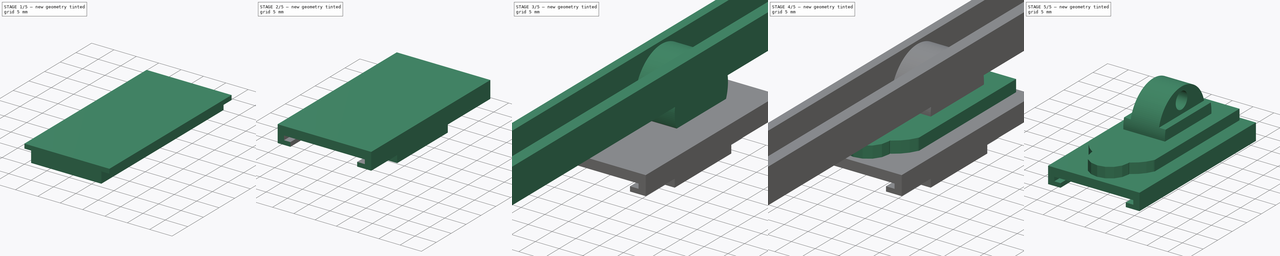
[diagram: build sequence overview — one tinted view per stage of 5, left to right]
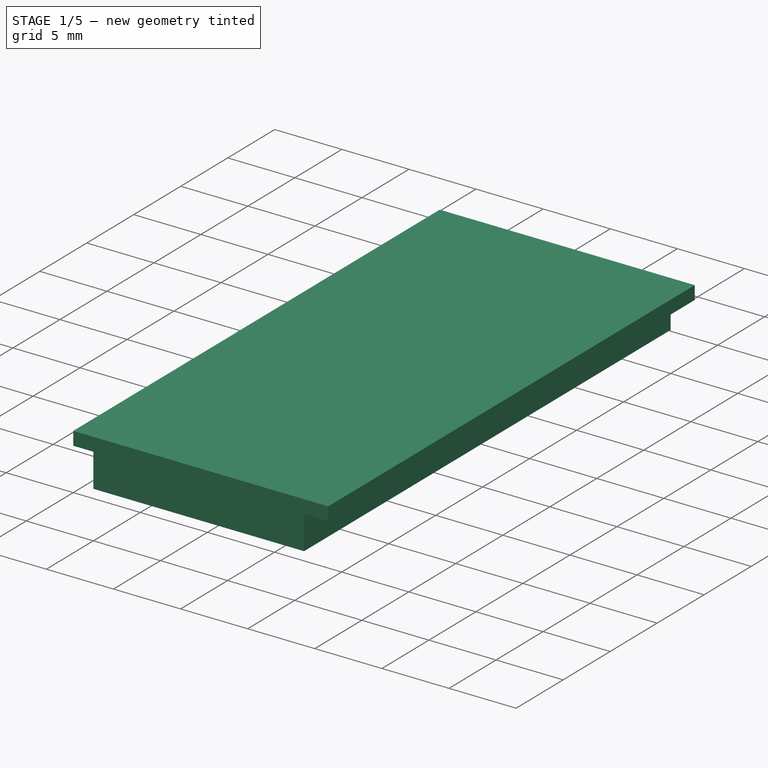
[diagram: stage 1 of 5 — iso view after this stage's code; geometry added in this stage tinted green]
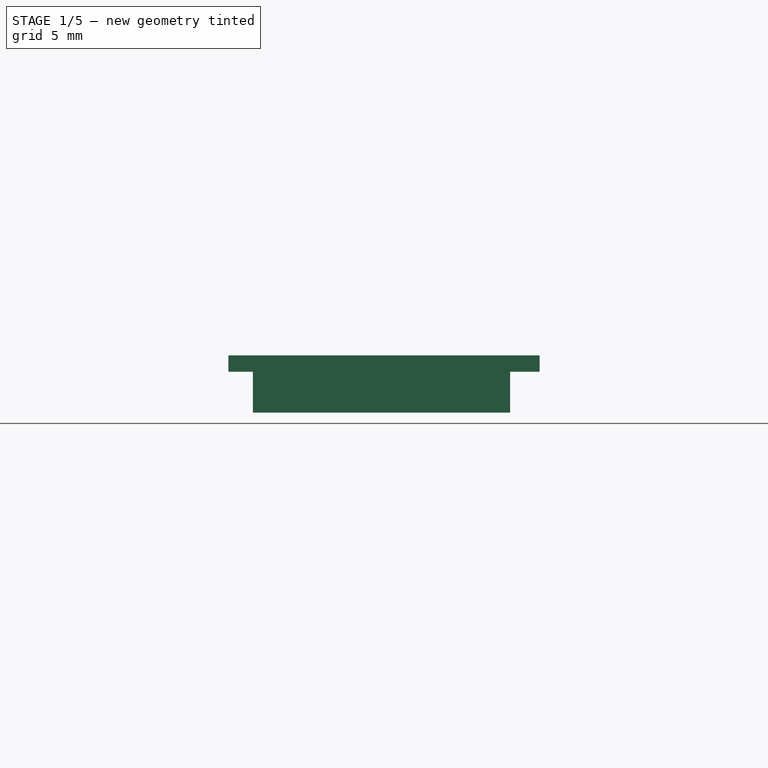
[diagram: stage 1 of 5 — front view after this stage's code; geometry added in this stage tinted green]
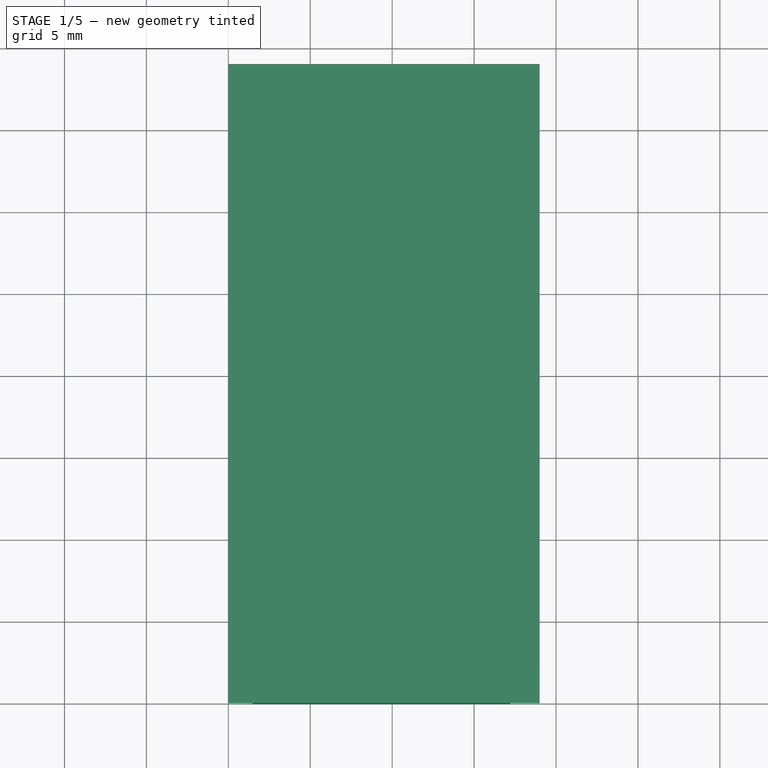
[diagram: stage 1 of 5 — top view after this stage's code; geometry added in this stage tinted green]
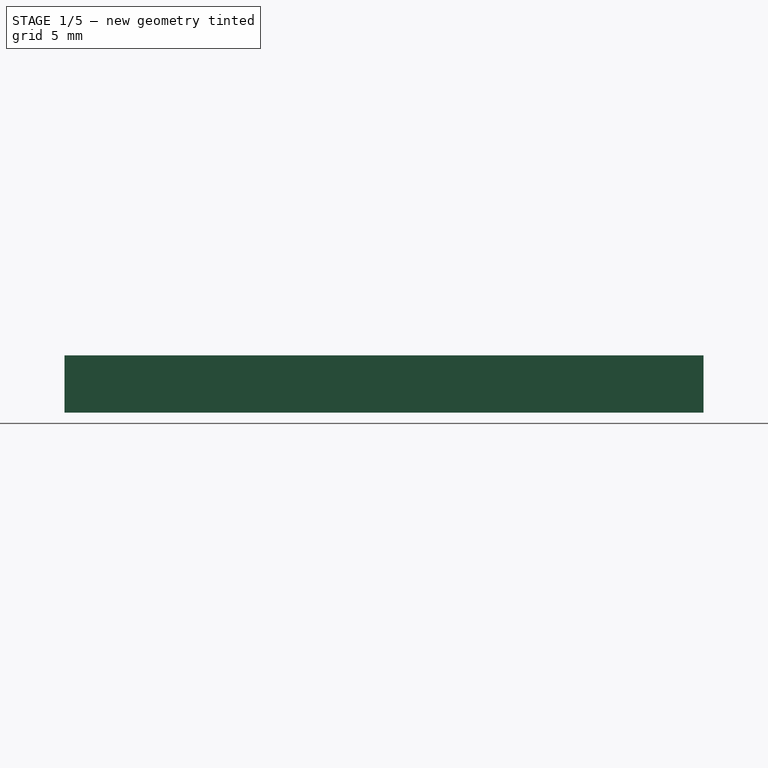
[diagram: stage 1 of 5 — right view after this stage's code; geometry added in this stage tinted green]
FCSTD DOCUMENT  (FreeCAD 0.17R13494 (Git))
Label: support
License: All rights reserved
LicenseURL: http://en.wikipedia.org/wiki/All_rights_reserved
objects: Part::Cut×5, Part::Box×4, Part::MultiFuse×3, Part::Cylinder×2, Sketcher::SketchObject×1, Part::Extrusion×1
note: 16 computed .brp shape members not serialized (recipe doc carries the construction recipe); baked Part::Feature solids carry a one-line shape summary decoded from their .brp

FEATURE [Part::Box] Box003  label="Cubo003"
  AttacherType = Attacher::AttachEngine3D
  Height = 1
  Length = 19
  Placement = pos=(0,-14,0) rot=(0,0,1;0rad)
  Width = 39
FEATURE [Part::Box] Box004  label="Cubo004"
  AttacherType = Attacher::AttachEngine3D
  Height = 3.5
  Length = 15.7
  Placement = pos=(1.5,-14,0) rot=(0,0,1;0rad)
  Width = 39
FEATURE [Part::MultiFuse] Fusion001
  Placement = pos=(0,10,-31) rot=(1,0,0;3.14159rad)
  Shapes = -> [Box003,Box004]
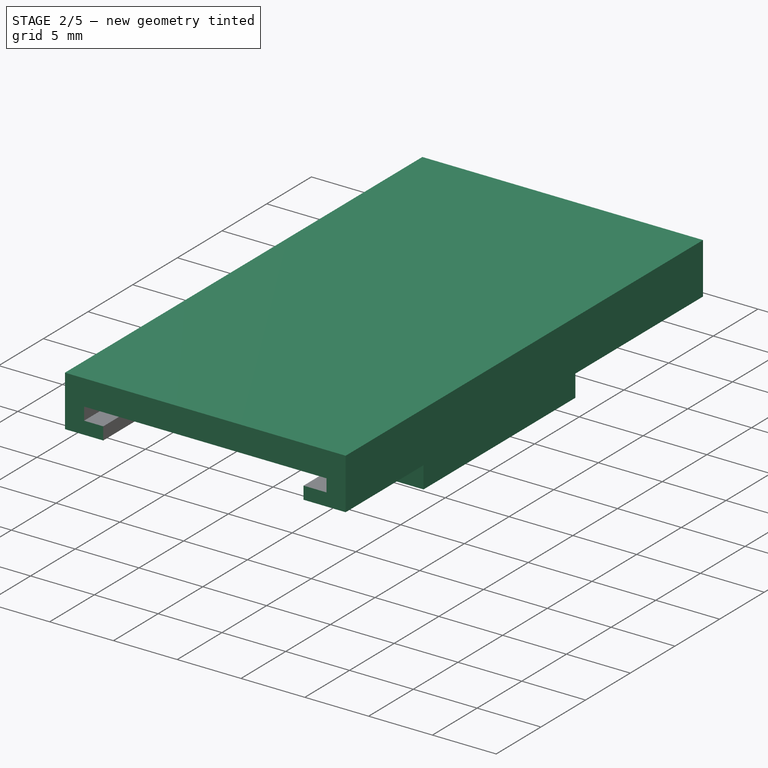
[diagram: stage 2 of 5 — iso view after this stage's code; geometry added in this stage tinted green]
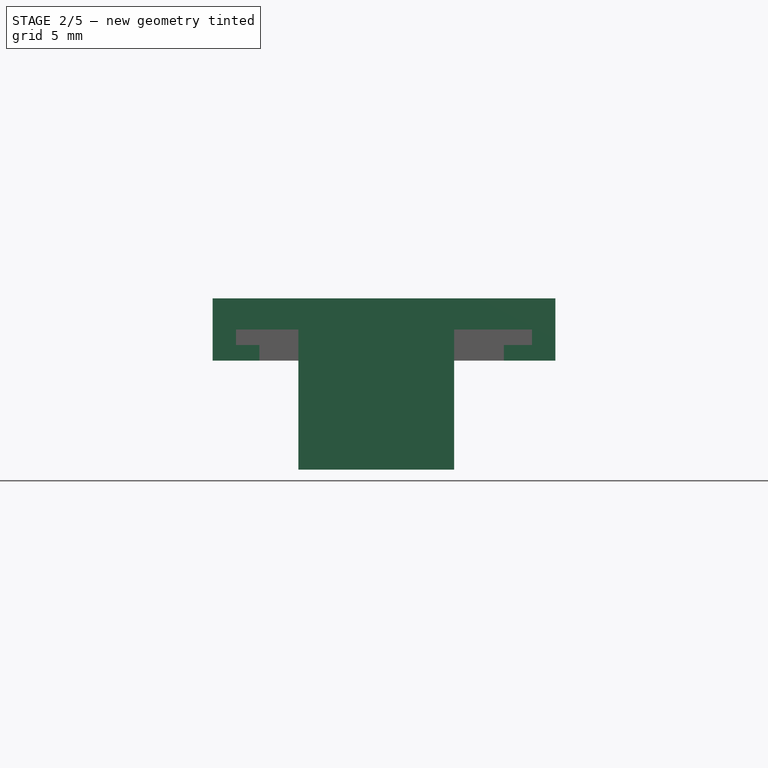
[diagram: stage 2 of 5 — front view after this stage's code; geometry added in this stage tinted green]
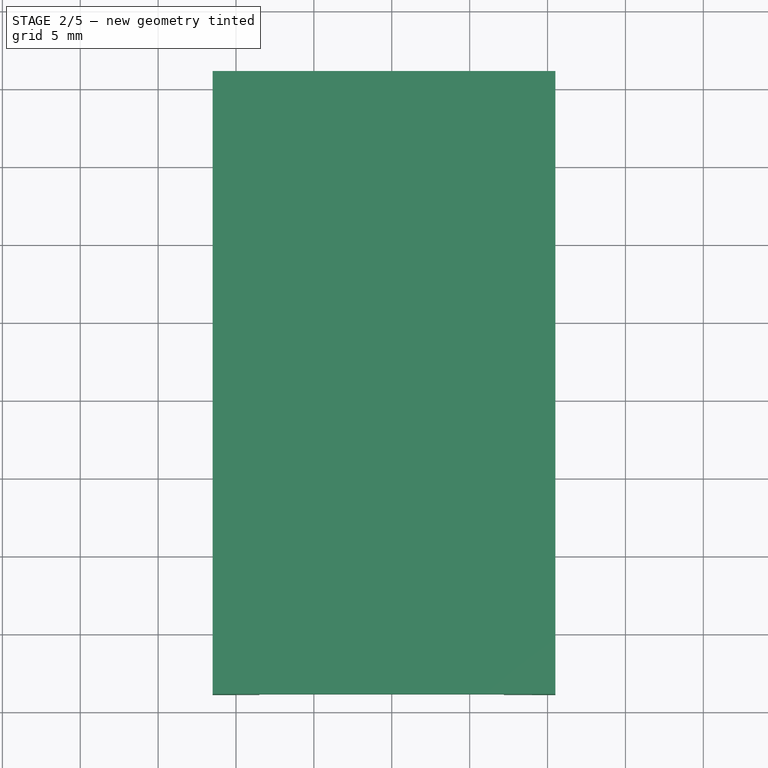
[diagram: stage 2 of 5 — top view after this stage's code; geometry added in this stage tinted green]
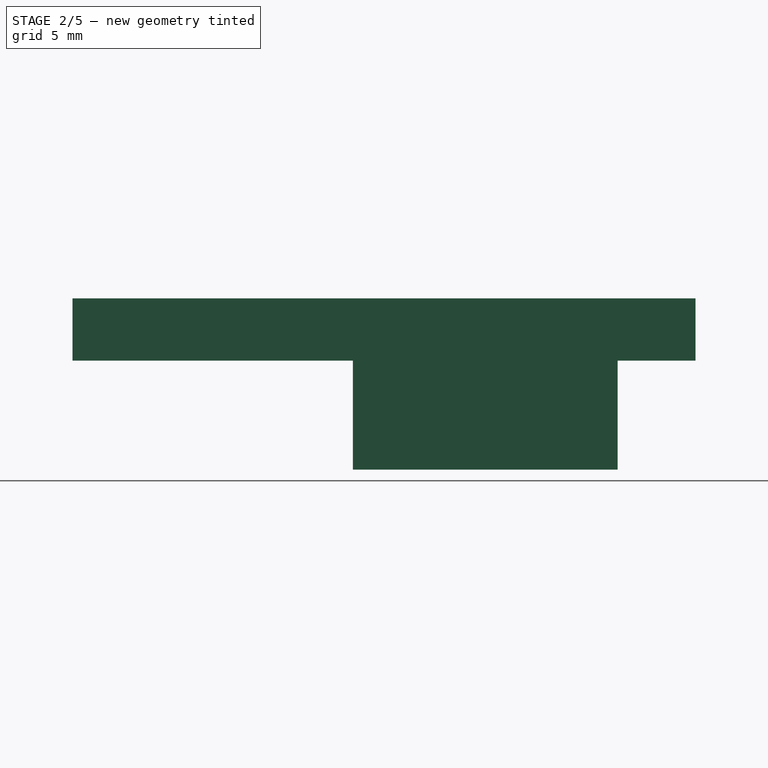
[diagram: stage 2 of 5 — right view after this stage's code; geometry added in this stage tinted green]
FEATURE [Part::Box] Box002  label="Cubo002"
  AttacherType = Attacher::AttachEngine3D
  Height = 4
  Length = 22
  Placement = pos=(-1.5,-14,-33) rot=(0,0,1;0rad)
  Width = 40
FEATURE [Part::Box] Box005  label="Cubo005"
  AttacherType = Attacher::AttachEngine3D
  Height = 10
  Length = 10
  Placement = pos=(4,4,-40) rot=(0,0,1;0rad)
  Width = 17
FEATURE [Part::Cut] Cut008
  Base = -> Box002
  Tool = -> Fusion001
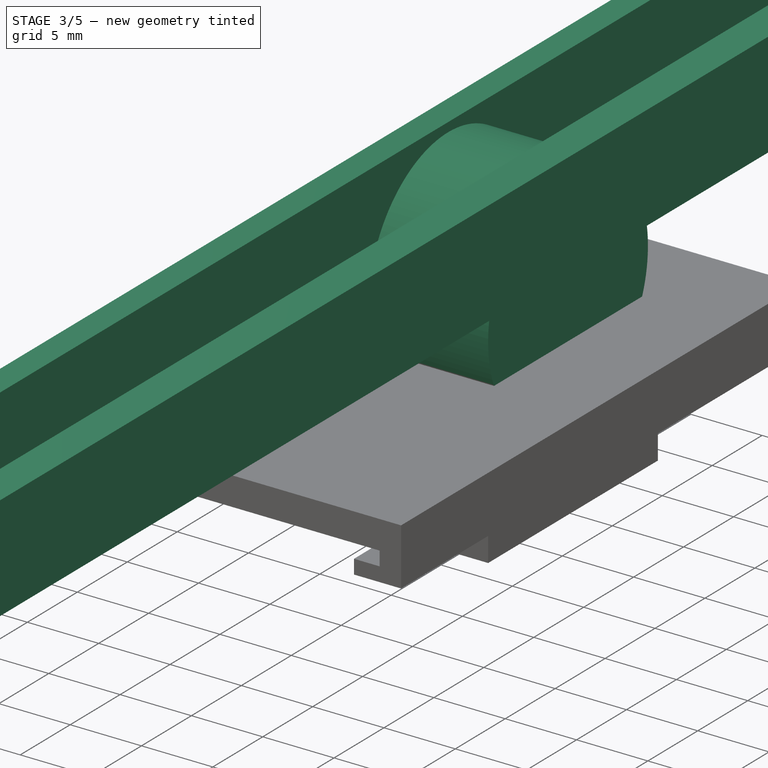
[diagram: stage 3 of 5 — iso view after this stage's code; geometry added in this stage tinted green]
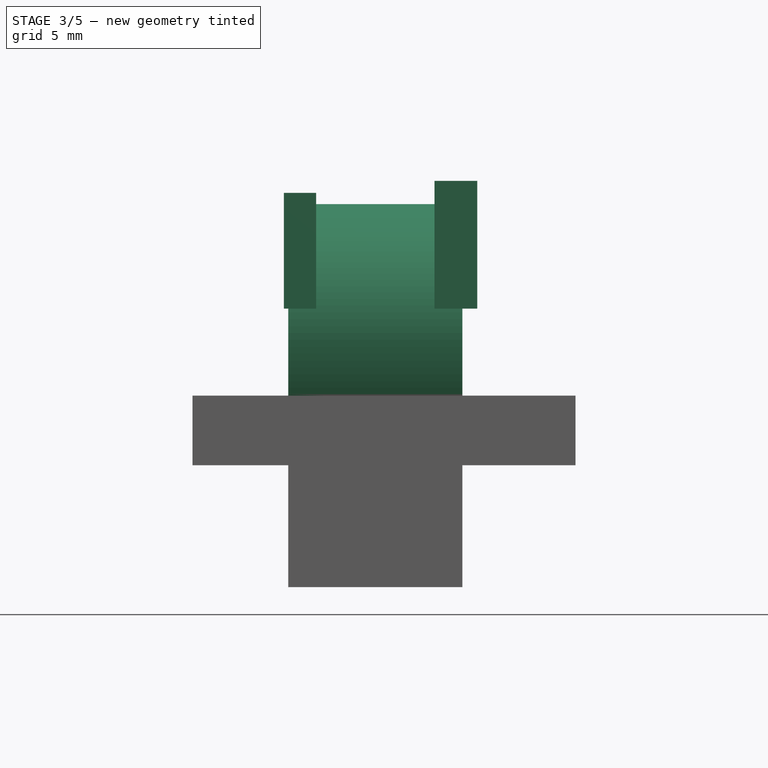
[diagram: stage 3 of 5 — front view after this stage's code; geometry added in this stage tinted green]
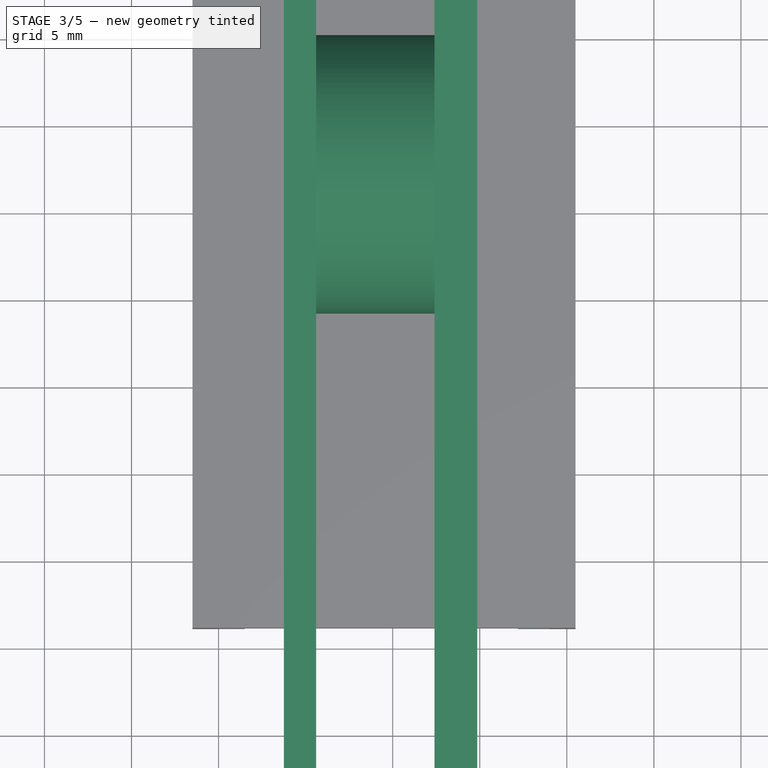
[diagram: stage 3 of 5 — top view after this stage's code; geometry added in this stage tinted green]
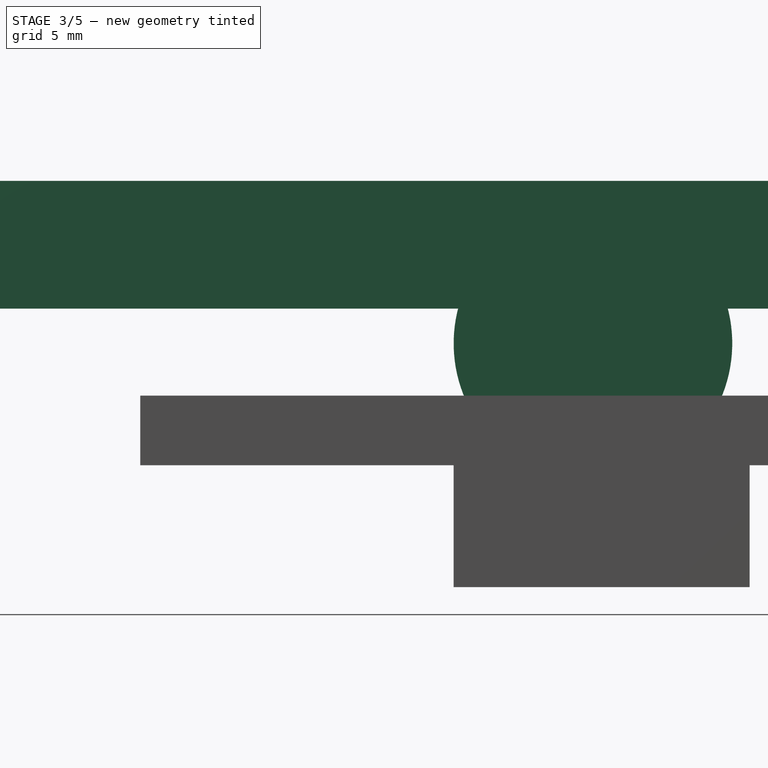
[diagram: stage 3 of 5 — right view after this stage's code; geometry added in this stage tinted green]
FEATURE [Part::Cylinder] Cylinder003  label="Cilindro004"
  Angle = 360
  AttacherType = Attacher::AttachEngine3D
  Height = 10
  Placement = pos=(4,12,-26) rot=(0,1,0;1.5708rad)
  Radius = 8
FEATURE [Part::Cylinder] Cylinder004  label="Cilindro005"
  Angle = 360
  AttacherType = Attacher::AttachEngine3D
  Height = 10
  Placement = pos=(4,12,-21) rot=(0,1,0;1.5708rad)
  Radius = 2
FEATURE [Sketcher::SketchObject] Sketch
  Placement = pos=(0,0,0) rot=(1,0,0;1.5708rad)
  sketch-geometry (8):
    g0: LineSegment StartX=5.59956 StartY=-24 StartZ=0 EndX=3.74899 EndY=-24 EndZ=0
    g1: LineSegment StartX=3.74899 StartY=-24 StartZ=0 EndX=3.74899 EndY=-17.3582 EndZ=0
    g2: LineSegment StartX=3.74899 StartY=-17.3582 StartZ=0 EndX=5.59956 EndY=-17.3582 EndZ=0
    g3: LineSegment StartX=5.59956 StartY=-17.3582 StartZ=0 EndX=5.59956 EndY=-24 EndZ=0
    g4: LineSegment StartX=12.4021 StartY=-24 StartZ=0 EndX=14.8551 EndY=-24 EndZ=0
    g5: LineSegment StartX=14.8551 StartY=-24 StartZ=0 EndX=14.8551 EndY=-16.6637 EndZ=0
    g6: LineSegment StartX=14.8551 StartY=-16.6637 StartZ=0 EndX=12.4021 EndY=-16.6637 EndZ=0
    g7: LineSegment StartX=12.4021 StartY=-16.6637 StartZ=0 EndX=12.4021 EndY=-24 EndZ=0
  constraints (18):
    c: Coincident(g0,g1)
    c: Coincident(g1,g2)
    c: Coincident(g2,g3)
    c: Coincident(g3,g0)
    c: Horizontal(g0)
    c: Horizontal(g2)
    c: Vertical(g1)
    c: Vertical(g3)
    c: Coincident(g4,g5)
    c: Coincident(g5,g6)
    c: Coincident(g6,g7)
    c: Coincident(g7,g4)
    c: Horizontal(g4)
    c: Horizontal(g6)
    c: Vertical(g5)
    c: Vertical(g7)
    c: DistanceY(g0,g-1) = 24
    c: DistanceY(g4,g-1) = 24
FEATURE [Part::Extrusion] Extrude
  Base = -> Sketch
  Dir = (0,-1,0)
  DirMode = 2
  FaceMakerClass = Part::FaceMakerBullseye
  LengthFwd = 100
  LengthRev = 0
  Solid = true
  Symmetric = true
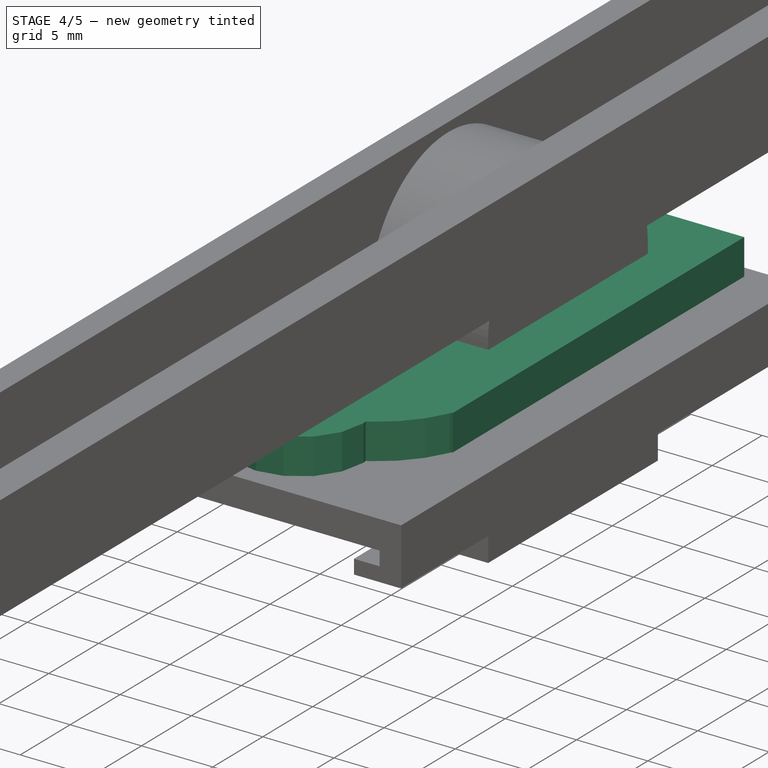
[diagram: stage 4 of 5 — iso view after this stage's code; geometry added in this stage tinted green]
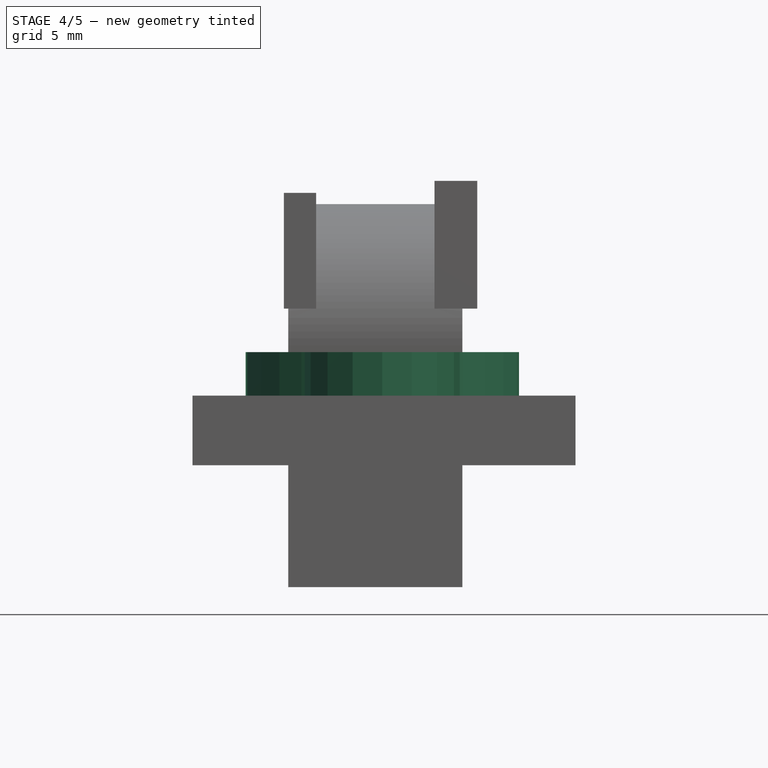
[diagram: stage 4 of 5 — front view after this stage's code; geometry added in this stage tinted green]
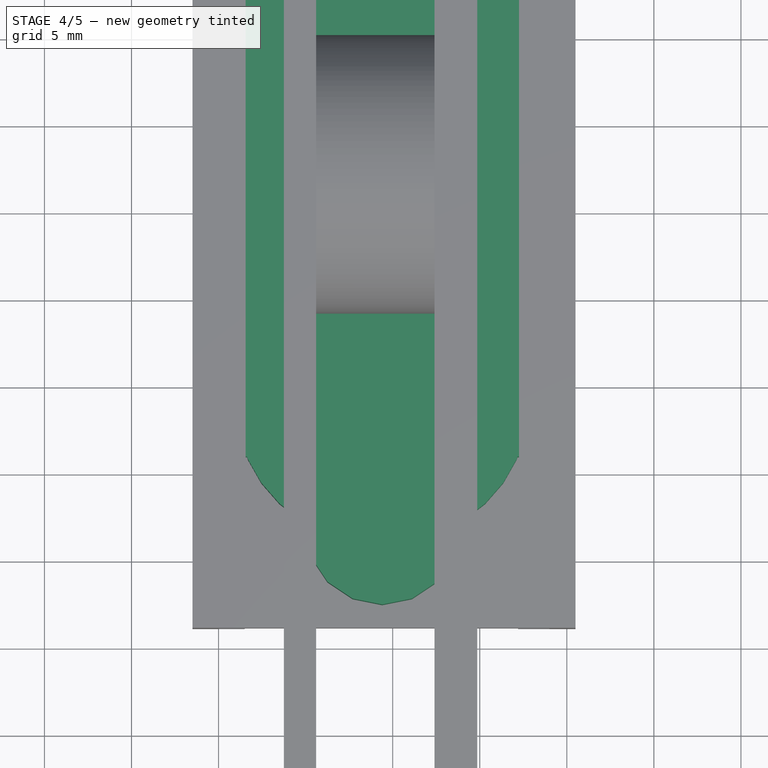
[diagram: stage 4 of 5 — top view after this stage's code; geometry added in this stage tinted green]
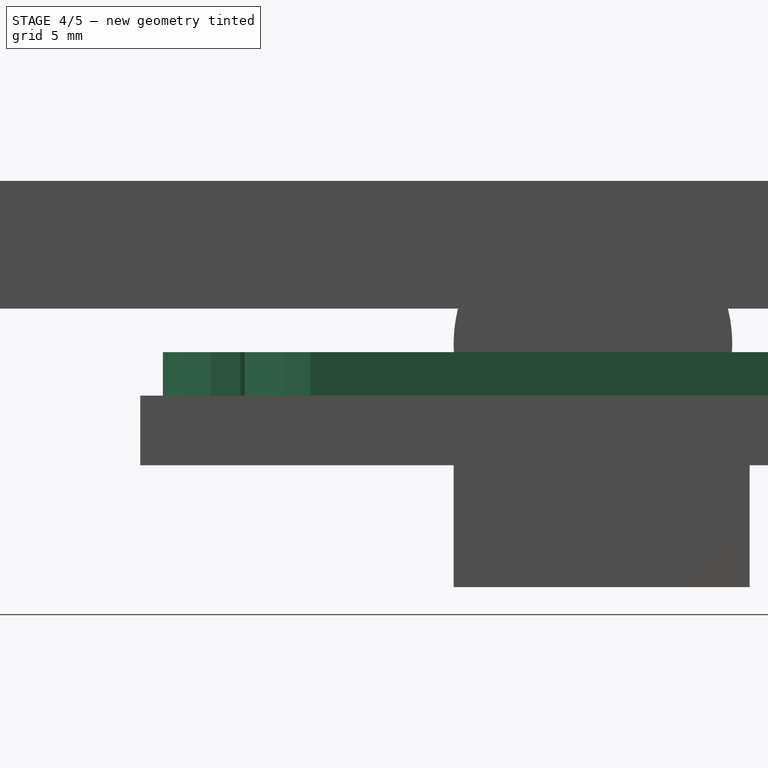
[diagram: stage 4 of 5 — right view after this stage's code; geometry added in this stage tinted green]
FEATURE [Part::Cut] Cut004  label="base_finished001"
  Placement = pos=(21,62,-30) rot=(0,0,1;0rad)
FEATURE [Part::MultiFuse] Fusion002
  Shapes = -> [Cut004,Cylinder003]
FEATURE [Part::Cut] Cut005
  Base = -> Fusion002
  Tool = -> Cylinder004
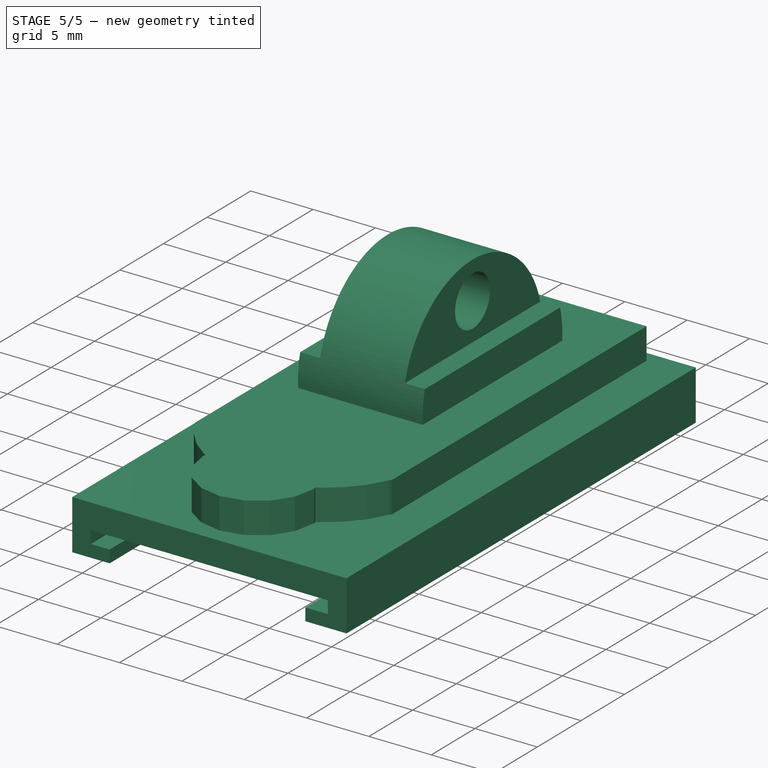
[diagram: stage 5 of 5 — iso view after this stage's code; geometry added in this stage tinted green]
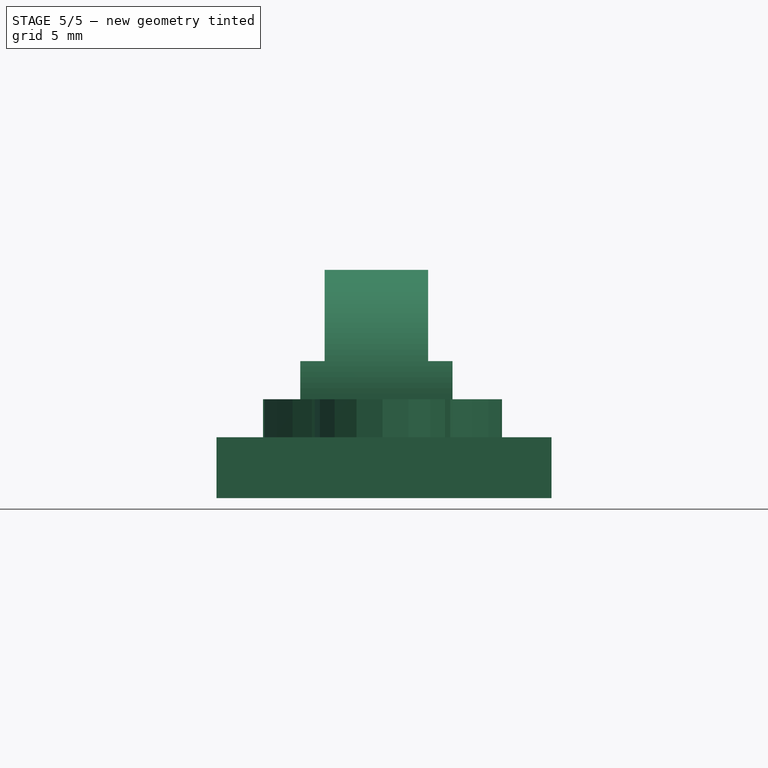
[diagram: stage 5 of 5 — front view after this stage's code; geometry added in this stage tinted green]
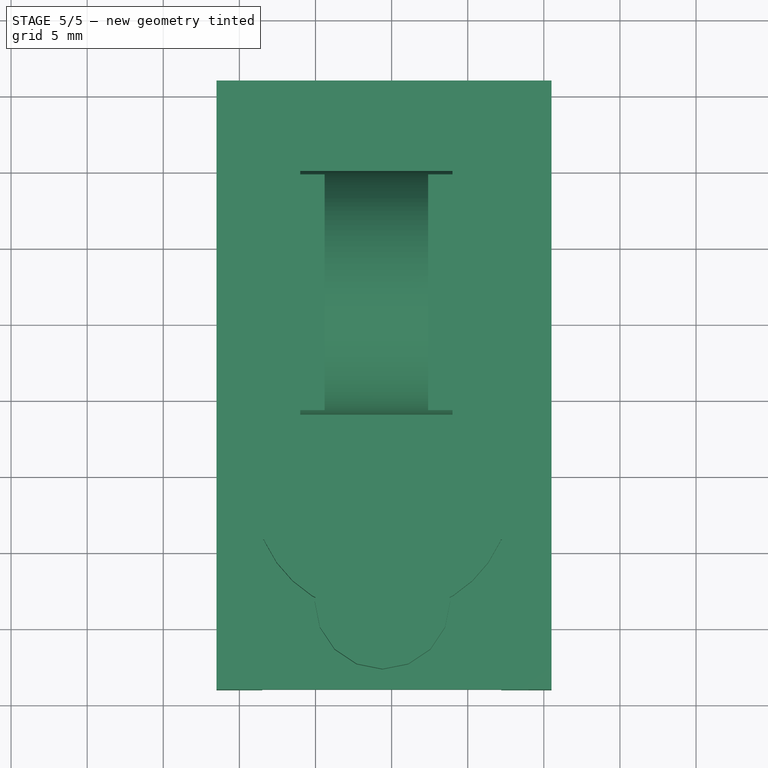
[diagram: stage 5 of 5 — top view after this stage's code; geometry added in this stage tinted green]
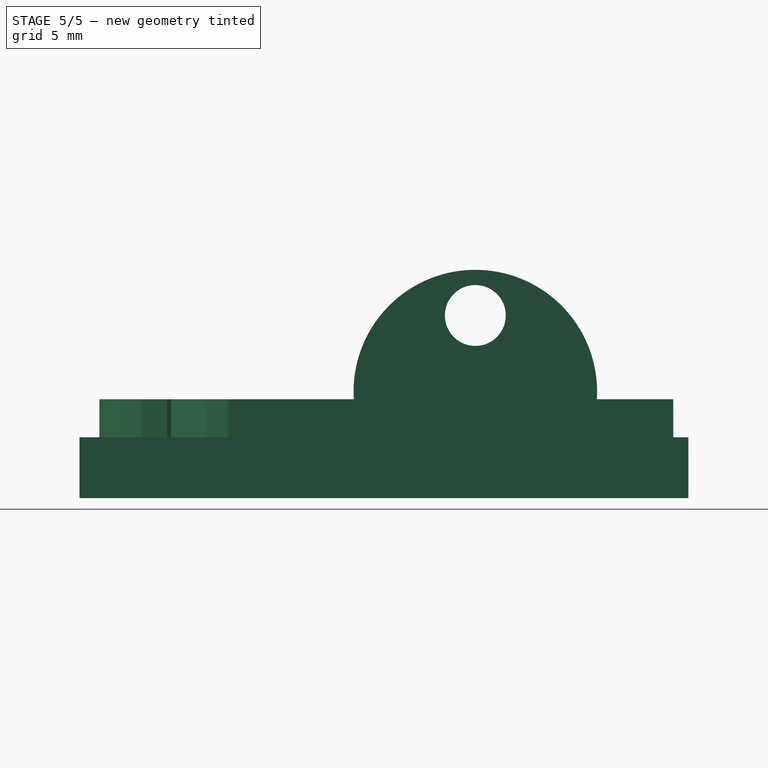
[diagram: stage 5 of 5 — right view after this stage's code; geometry added in this stage tinted green]
FEATURE [Part::Cut] Cut006
  Base = -> Cut005
  Tool = -> Extrude
FEATURE [Part::Cut] Cut007
  Base = -> Cut006
  Tool = -> Box005
FEATURE [Part::MultiFuse] Fusion003
  Shapes = -> [Cut007,Cut008]
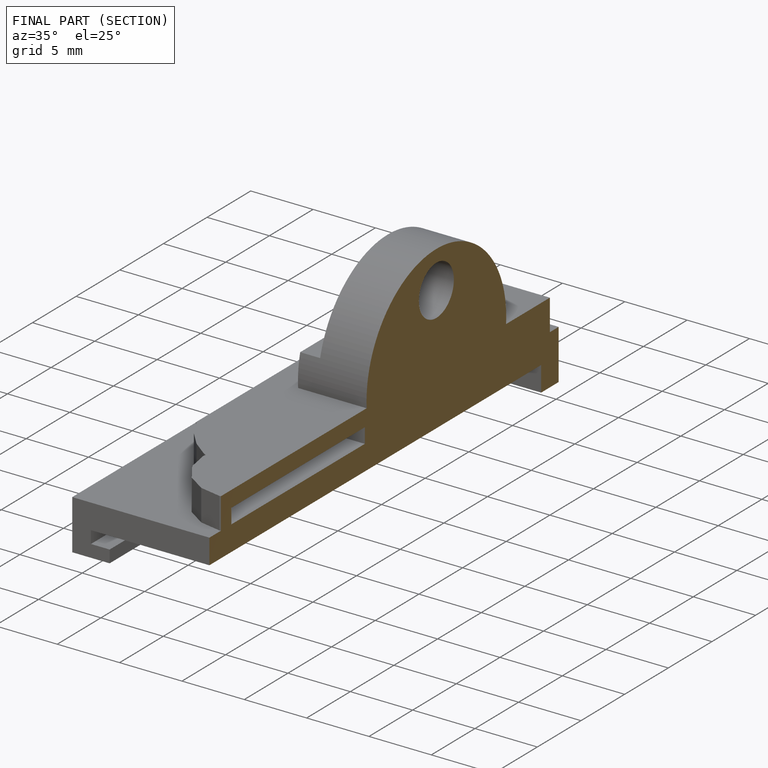
[diagram: finished part — half-section view (interior)]
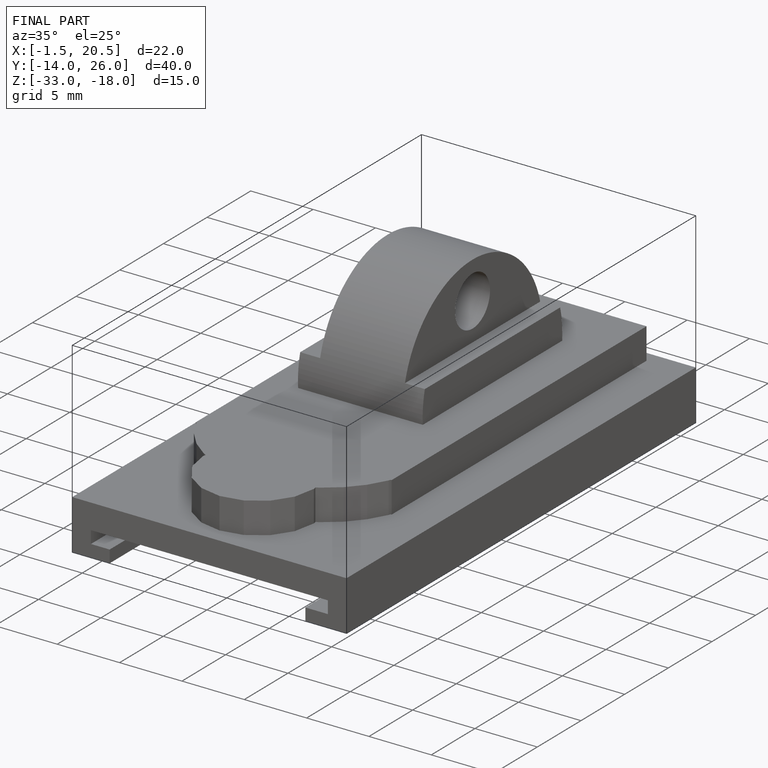
[diagram: finished part — iso view with bounding-box wireframe]
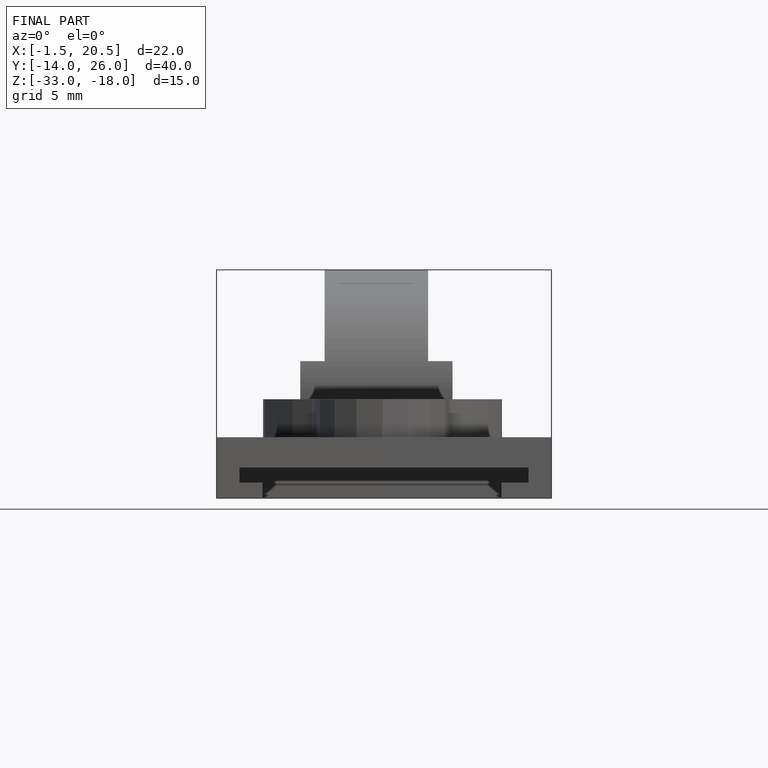
[diagram: finished part — front view with bounding-box wireframe]
